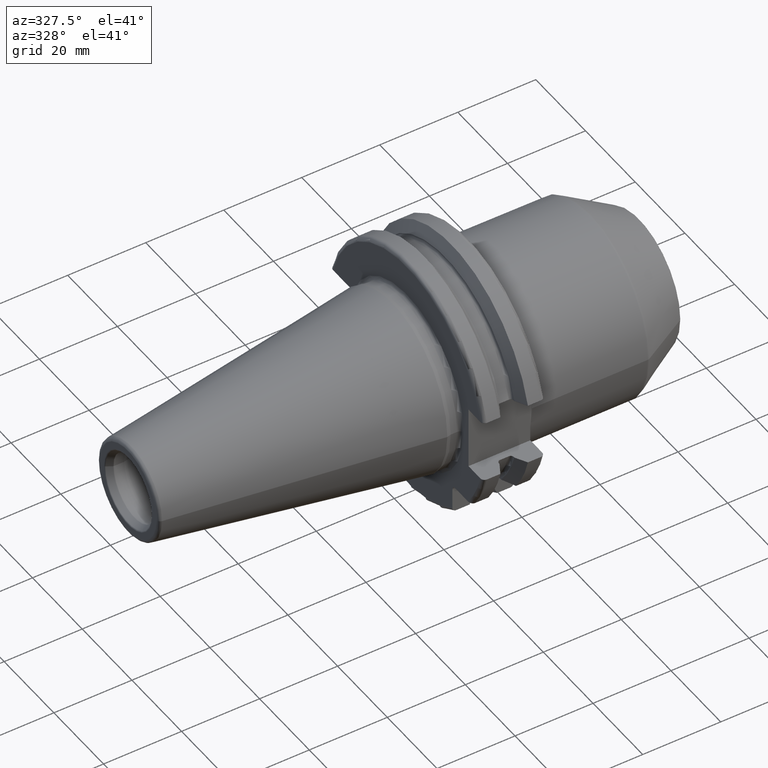
[diagram: clean part render]
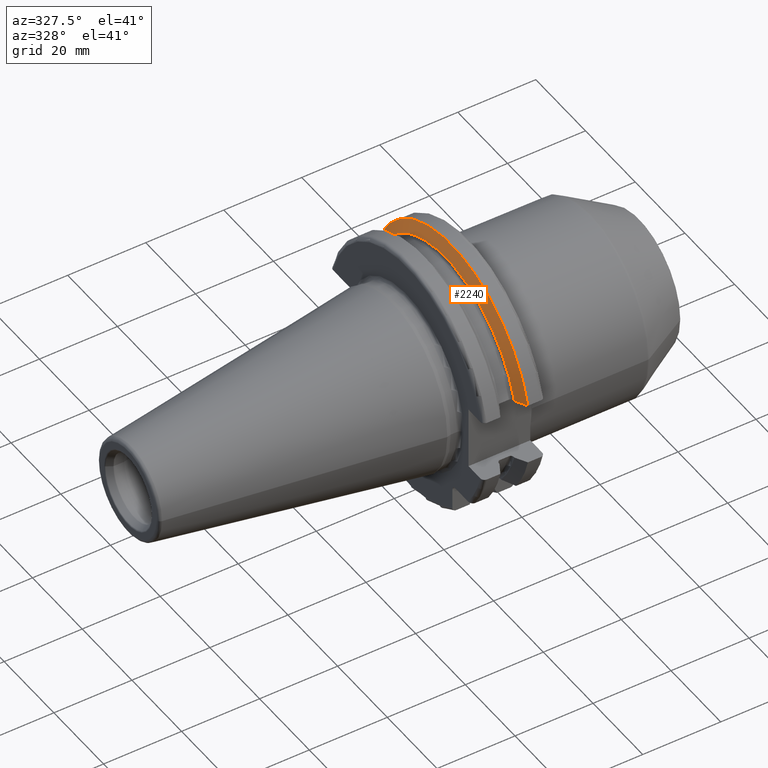
[diagram: same view with one face highlighted and labeled with its STEP entity id]
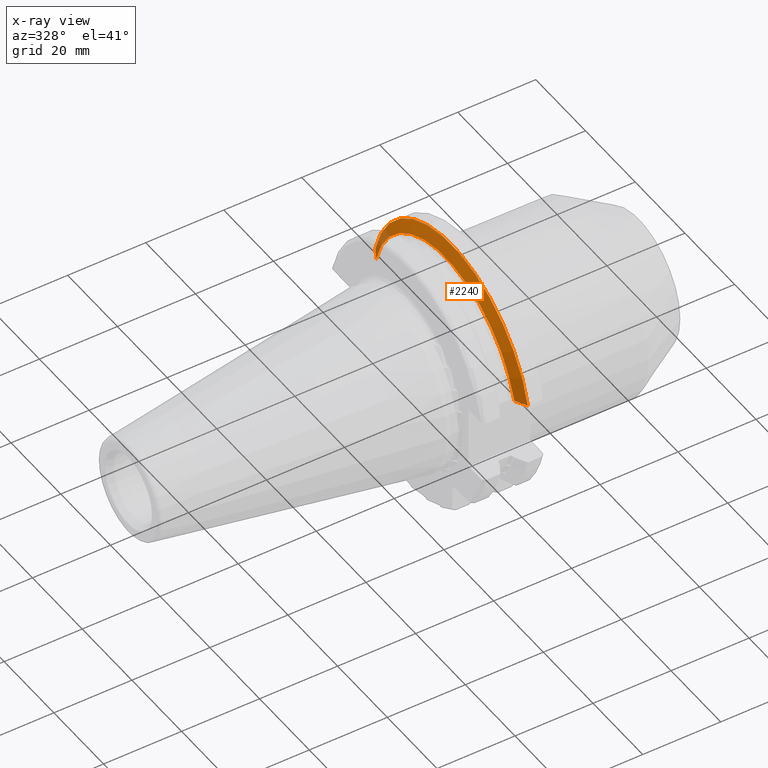
[diagram: x-ray of the same camera — body ghosted, the highlighted face saturated]
A machine part, auxiliary view. The second image highlights one B-rep face of the part: STEP entity #2240.
The next image is the same camera in x-ray: the body ghosted, the highlighted face saturated — about 5% of this face is hidden behind the body in this view.
In plain terms, the highlighted conical surface has half-angle 60 deg.
Its self-contained STEP definition (entity closure, byte-faithful):
#460=CARTESIAN_POINT('',(1.470405352042E1,3.071231684927E1,8.1E0));
#461=CARTESIAN_POINT('',(1.451824513517E1,3.037948258059E1,8.1E0));
#462=CARTESIAN_POINT('',(1.415074718503E1,2.972048825911E1,8.1E0));
#463=CARTESIAN_POINT('',(1.361195207986E1,2.875212438619E1,8.1E0));
#464=CARTESIAN_POINT('',(1.326094199325E1,2.811971443922E1,8.1E0));
#465=CARTESIAN_POINT('',(1.30875E1,2.780681820245E1,8.1E0));
#467=CARTESIAN_POINT('',(1.30875E1,-2.780681820245E1,8.1E0));
#468=CARTESIAN_POINT('',(1.326086175289E1,-2.811956968242E1,8.1E0));
#469=CARTESIAN_POINT('',(1.361176448515E1,-2.875178670793E1,8.1E0));
#470=CARTESIAN_POINT('',(1.415055493375E1,-2.972014324708E1,8.1E0));
#471=CARTESIAN_POINT('',(1.451816260441E1,-3.037933474515E1,8.1E0));
#472=CARTESIAN_POINT('',(1.470405352042E1,-3.071231684927E1,8.1E0));
#474=CARTESIAN_POINT('',(1.30875E1,0.E0,0.E0));
#475=DIRECTION('',(1.E0,0.E0,0.E0));
#476=DIRECTION('',(0.E0,9.600957415706E-1,2.796715341576E-1));
#477=AXIS2_PLACEMENT_3D('',#474,#475,#476);
#505=CARTESIAN_POINT('',(1.470405352042E1,0.E0,0.E0));
#506=DIRECTION('',(1.E0,0.E0,0.E0));
#507=DIRECTION('',(0.E0,9.669363825036E-1,2.550177095632E-1));
#508=AXIS2_PLACEMENT_3D('',#505,#506,#507);
#1483=CARTESIAN_POINT('',(1.30875E1,2.780681820245E1,8.1E0));
#1484=VERTEX_POINT('',#1483);
#1493=CARTESIAN_POINT('',(1.30875E1,-2.780681820245E1,8.1E0));
#1494=VERTEX_POINT('',#1493);
#1503=VERTEX_POINT('',#460);
#1504=VERTEX_POINT('',#472);
#2227=CARTESIAN_POINT('',(1.389577676021E1,0.E0,0.E0));
#2228=DIRECTION('',(1.E0,0.E0,0.E0));
#2229=DIRECTION('',(0.E0,-1.E0,0.E0));
#2230=AXIS2_PLACEMENT_3D('',#2227,#2228,#2229);
#2231=CONICAL_SURFACE('',#2230,3.036252358474E1,6.E1);
#2232=ORIENTED_EDGE('',*,*,#1854,.F.);
#2234=ORIENTED_EDGE('',*,*,#2233,.T.);
#2236=ORIENTED_EDGE('',*,*,#2235,.F.);
#2237=ORIENTED_EDGE('',*,*,#2189,.F.);
#2238=EDGE_LOOP('',(#2232,#2234,#2236,#2237));
#2239=FACE_OUTER_BOUND('',#2238,.F.);
#2240=ADVANCED_FACE('',(#2239),#2231,.T.);
#466=B_SPLINE_CURVE_WITH_KNOTS('',3,(#460,#461,#462,#463,#464,#465),
.UNSPECIFIED.,.F.,.F.,(4,1,1,4),(0.E0,3.333333333333E-1,6.666666666667E-1,1.E0),
.UNSPECIFIED.);
#473=B_SPLINE_CURVE_WITH_KNOTS('',3,(#467,#468,#469,#470,#471,#472),
.UNSPECIFIED.,.F.,.F.,(4,1,1,4),(0.E0,3.333333333333E-1,6.666666666667E-1,1.E0),
.UNSPECIFIED.);
#478=CIRCLE('',#477,2.896254716948E1);
#509=CIRCLE('',#508,3.17625E1);
#1854=EDGE_CURVE('',#1503,#1484,#466,.T.);
#2189=EDGE_CURVE('',#1484,#1494,#478,.T.);
#2233=EDGE_CURVE('',#1503,#1504,#509,.T.);
#2235=EDGE_CURVE('',#1494,#1504,#473,.T.);